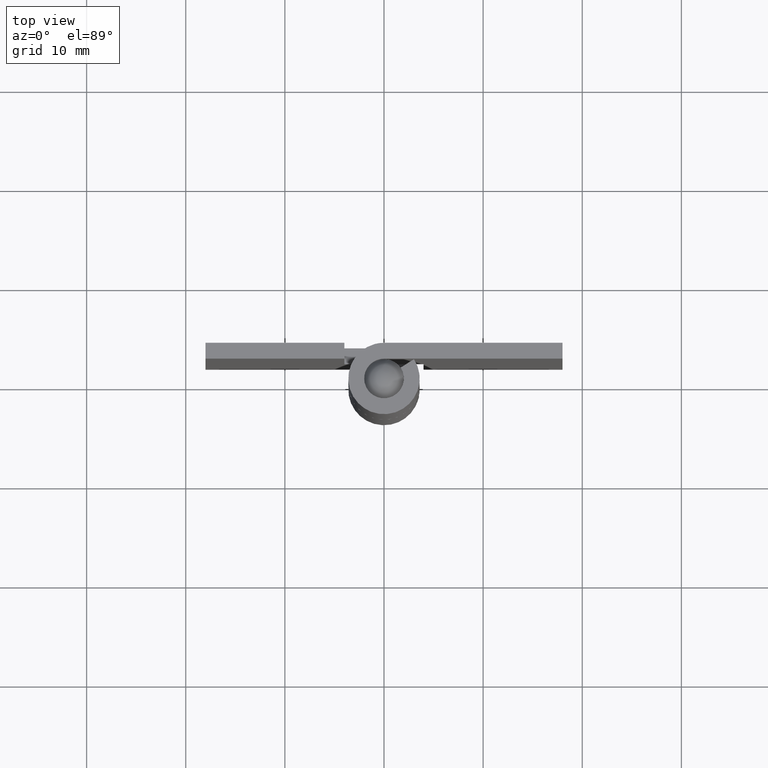
[diagram: clean part render]
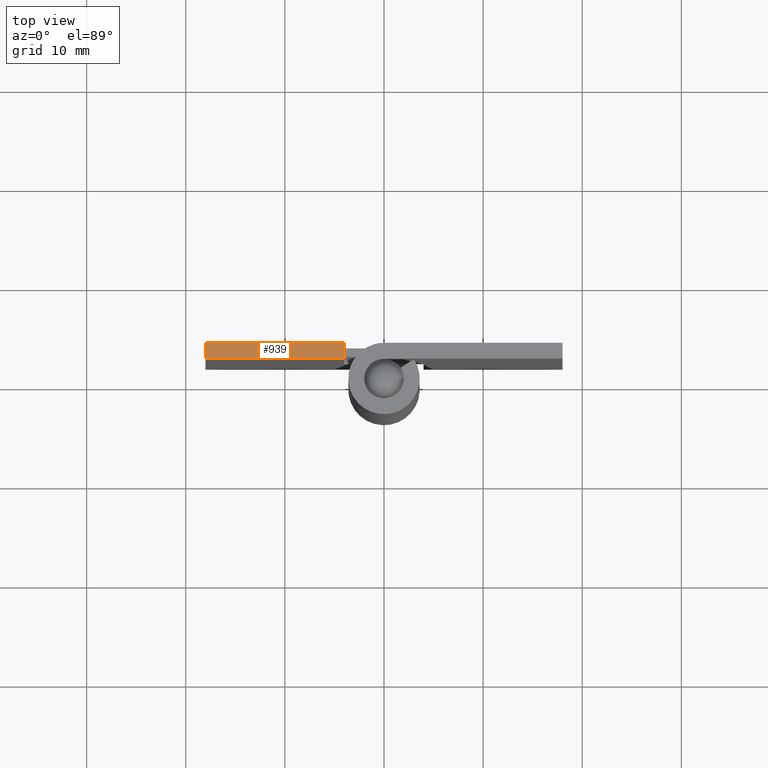
[diagram: same view with one face highlighted and labeled with its STEP entity id]
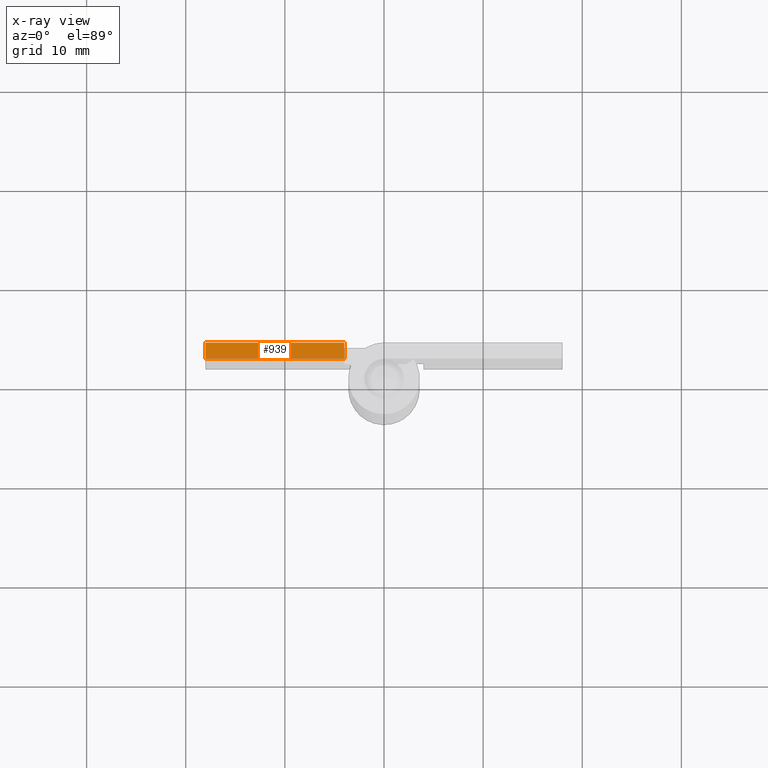
[diagram: x-ray of the same camera — body ghosted, the highlighted face saturated]
A machine part, top view. The second image highlights one B-rep face of the part: STEP entity #939.
The next image is the same camera in x-ray: the body ghosted, the highlighted face saturated — about 0% of this face is hidden behind the body in this view.
In plain terms, the highlighted face is a freeform B-spline surface patch.
Its self-contained STEP definition (entity closure, byte-faithful):
#715=CARTESIAN_POINT('',(-4.000000000000045,3.599998000000000,64.000008000000093));
#716=VERTEX_POINT('',#715);
#722=CARTESIAN_POINT('',(-4.000000000000045,2.0,64.000007999999994));
#723=VERTEX_POINT('',#722);
#724=CARTESIAN_POINT('',(-4.000000000000045,3.599998000000000,64.000008000000093));
#725=CARTESIAN_POINT('',(-4.000000000000045,2.0,64.000007999999994));
#726=QUASI_UNIFORM_CURVE('',1,(#724,#725),.UNSPECIFIED.,.F.,.U.);
#727=EDGE_CURVE('',#716,#723,#726,.T.);
#897=CARTESIAN_POINT('',(-18.0,3.599998000000000,64.000008000000093));
#898=VERTEX_POINT('',#897);
#899=CARTESIAN_POINT('',(-18.0,2.0,64.000008000000093));
#900=VERTEX_POINT('',#899);
#901=CARTESIAN_POINT('',(-18.0,3.599998000000000,64.000008000000093));
#902=CARTESIAN_POINT('',(-18.0,2.0,64.000008000000093));
#903=QUASI_UNIFORM_CURVE('',1,(#901,#902),.UNSPECIFIED.,.F.,.U.);
#904=EDGE_CURVE('',#898,#900,#903,.T.);
#920=CARTESIAN_POINT('',(-18.699299972865280,1.920080103001107,64.000007999999994));
#921=CARTESIAN_POINT('',(-3.300699651625501,1.920080103001107,64.000007999999994));
#922=CARTESIAN_POINT('',(-18.699299972865280,3.679917939914185,64.000007999999994));
#923=CARTESIAN_POINT('',(-3.300699651625501,3.679917939914185,64.000007999999994));
#924=B_SPLINE_SURFACE_WITH_KNOTS('',1,1,((#920,#922),(#921,#923)),.UNSPECIFIED.,.F.,.F.,.U.,(2,2),(2,2),(0.0,15.398600321239771),(0.041708334948495,0.958291687403247),.UNSPECIFIED.);
#925=ORIENTED_EDGE('',*,*,#727,.F.);
#926=CARTESIAN_POINT('',(-4.000000000000045,3.599998000000000,64.000008000000093));
#927=CARTESIAN_POINT('',(-18.0,3.599998000000000,64.000008000000093));
#928=QUASI_UNIFORM_CURVE('',1,(#926,#927),.UNSPECIFIED.,.F.,.U.);
#929=EDGE_CURVE('',#716,#898,#928,.T.);
#930=ORIENTED_EDGE('',*,*,#929,.T.);
#931=ORIENTED_EDGE('',*,*,#904,.T.);
#932=CARTESIAN_POINT('',(-18.0,2.0,64.000008000000093));
#933=CARTESIAN_POINT('',(-4.000000000000045,2.0,64.000007999999994));
#934=QUASI_UNIFORM_CURVE('',1,(#932,#933),.UNSPECIFIED.,.F.,.U.);
#935=EDGE_CURVE('',#900,#723,#934,.T.);
#936=ORIENTED_EDGE('',*,*,#935,.T.);
#937=EDGE_LOOP('',(#925,#930,#931,#936));
#938=FACE_OUTER_BOUND('',#937,.T.);
#939=ADVANCED_FACE('',(#938),#924,.T.);